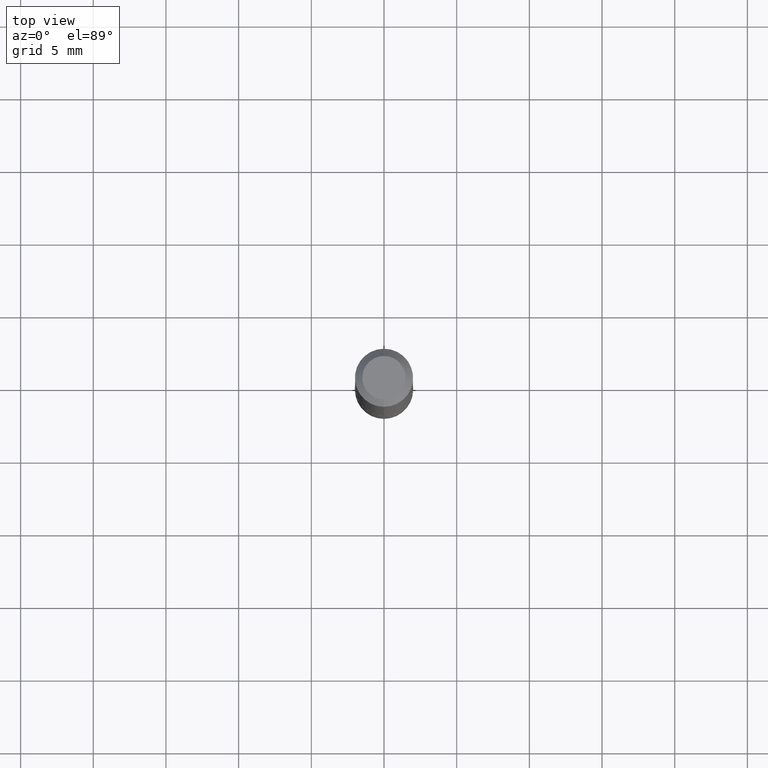
[diagram: clean part render]
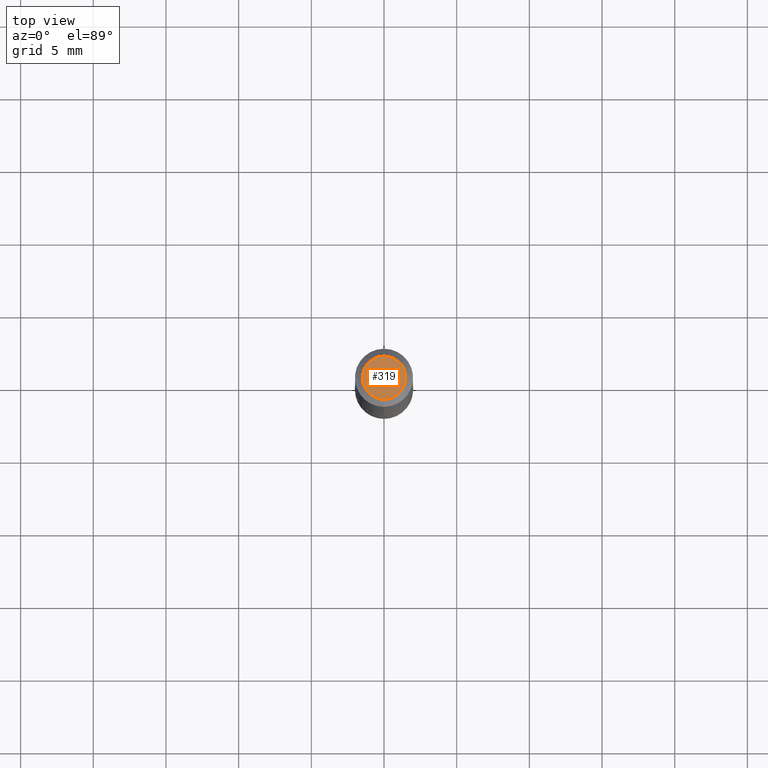
[diagram: same view with one face highlighted and labeled with its STEP entity id]
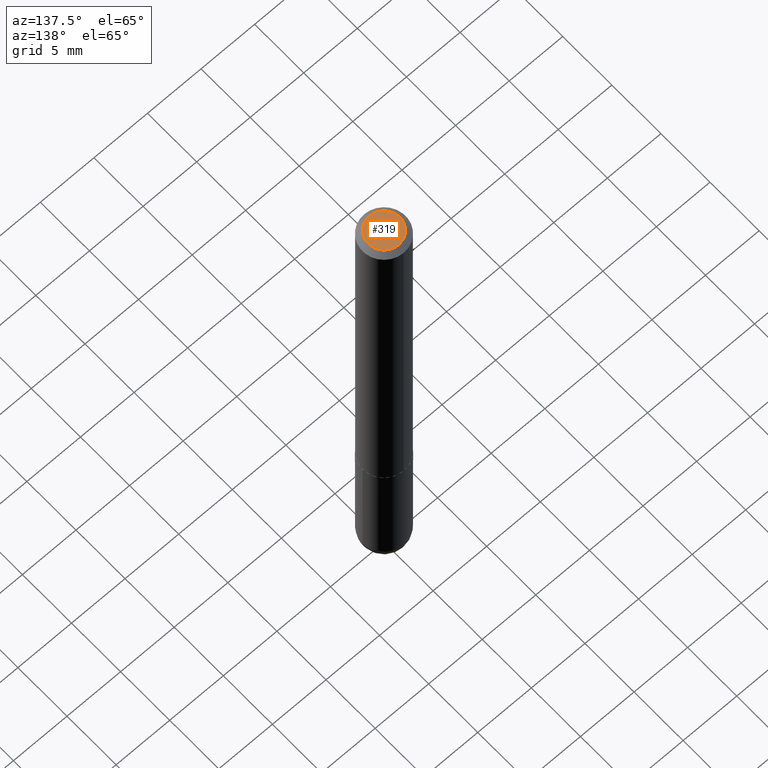
[diagram: same view with one face highlighted and labeled with its STEP entity id]
A machine part, top view. The second image highlights one B-rep face of the part: STEP entity #319.
A second angle (auxiliary view) of the same face is appended — the face is thin or edge-on in the first view.
In plain terms, the highlighted planar face has unit normal (0, -0, -1).
Its self-contained STEP definition (entity closure, byte-faithful):
#26 = CARTESIAN_POINT ( 'NONE',  ( -4.716592373467918680E-16, -0.05874999999999983707, 3.759343949076881619E-16 ) ) ;
#43 = AXIS2_PLACEMENT_3D ( 'NONE', #128, #123, #51 ) ;
#51 = DIRECTION ( 'NONE',  ( 6.982962677686265922E-15, 1.000000000000000000, -3.492071693282613969E-15 ) ) ;
#74 = CIRCLE ( 'NONE', #394, 0.05874999999999983707 ) ;
#78 = EDGE_CURVE ( 'NONE', #386, #172, #74, .T. ) ;
#79 = CARTESIAN_POINT ( 'NONE',  ( -4.175549819648685349E-45, 5.963591822157074945E-31, 1.707751829273352124E-16 ) ) ;
#88 = DIRECTION ( 'NONE',  ( -6.982962677686265133E-15, -1.000000000000000000, 3.492071693282613180E-15 ) ) ;
#106 = ORIENTED_EDGE ( 'NONE', *, *, #78, .T. ) ;
#119 = PLANE ( 'NONE',  #43 ) ;
#123 = DIRECTION ( 'NONE',  ( 2.445056563883394781E-29, -3.492071693282613969E-15, -1.000000000000000000 ) ) ;
#128 = CARTESIAN_POINT ( 'NONE',  ( 4.102490573140669465E-16, 0.05874999999999983707, -1.197716205166853802E-16 ) ) ;
#172 = VERTEX_POINT ( 'NONE', #396 ) ;
#178 = EDGE_CURVE ( 'NONE', #172, #386, #385, .T. ) ;
#179 = DIRECTION ( 'NONE',  ( -2.445056563883395622E-29, 3.492071693282613575E-15, 1.000000000000000000 ) ) ;
#226 = DIRECTION ( 'NONE',  ( -2.445056563883395622E-29, 3.492071693282613575E-15, 1.000000000000000000 ) ) ;
#269 = ORIENTED_EDGE ( 'NONE', *, *, #178, .T. ) ;
#284 = FACE_OUTER_BOUND ( 'NONE', #359, .T. ) ;
#309 = DIRECTION ( 'NONE',  ( -6.982962677686265133E-15, -1.000000000000000000, 3.492071693282613180E-15 ) ) ;
#319 = ADVANCED_FACE ( 'NONE', ( #284 ), #119, .F. ) ;
#359 = EDGE_LOOP ( 'NONE', ( #269, #106 ) ) ;
#365 = CARTESIAN_POINT ( 'NONE',  ( -4.175549819648685349E-45, 5.963591822157074945E-31, 1.707751829273352124E-16 ) ) ;
#379 = AXIS2_PLACEMENT_3D ( 'NONE', #79, #226, #88 ) ;
#385 = CIRCLE ( 'NONE', #379, 0.05874999999999983707 ) ;
#386 = VERTEX_POINT ( 'NONE', #26 ) ;
#394 = AXIS2_PLACEMENT_3D ( 'NONE', #365, #179, #309 ) ;
#396 = CARTESIAN_POINT ( 'NONE',  ( 4.800786840909303433E-16, 0.05874999999999983707, -3.438402905301775550E-17 ) ) ;